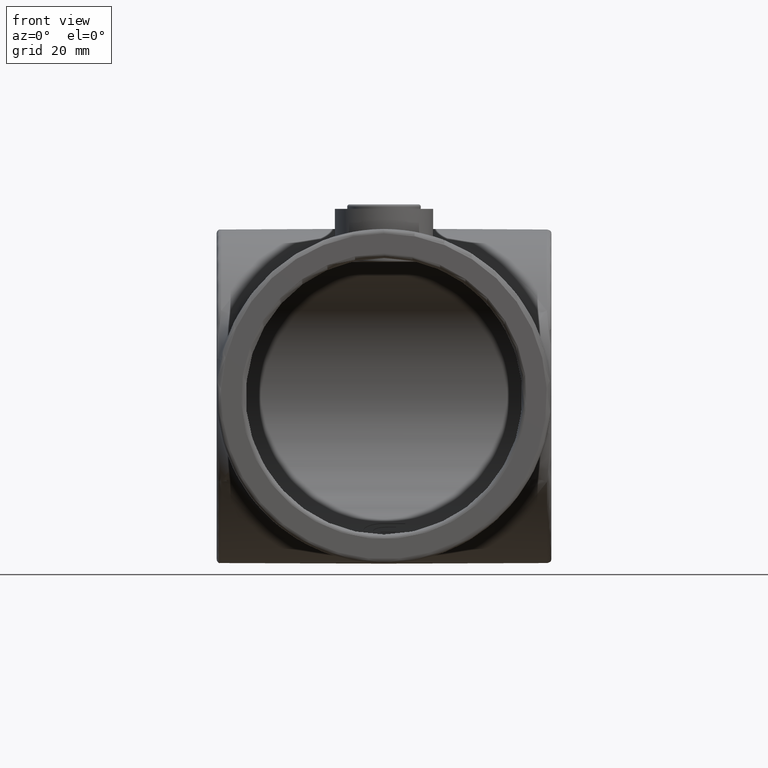
[diagram: clean part render]
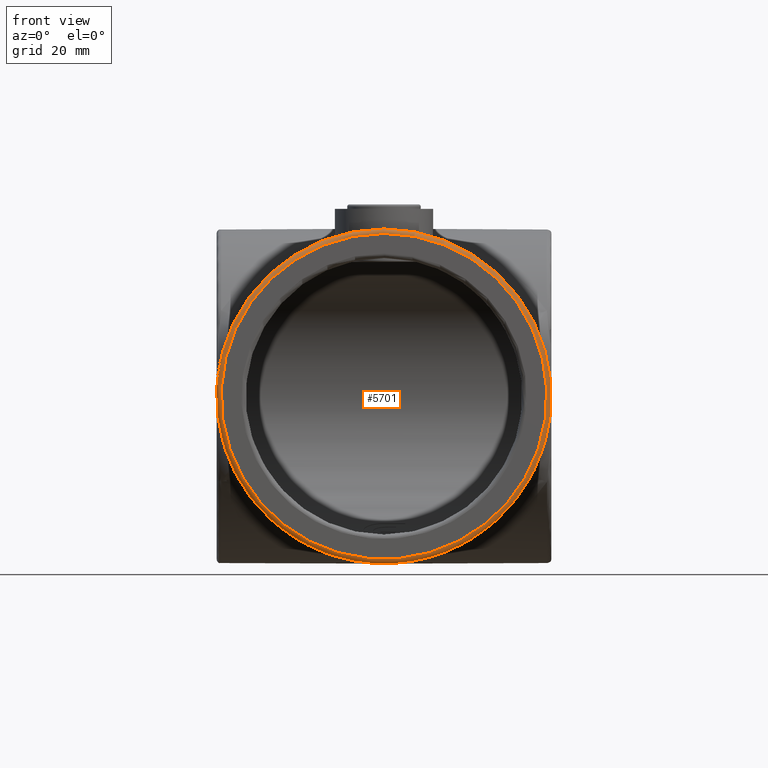
[diagram: same view with one face highlighted and labeled with its STEP entity id]
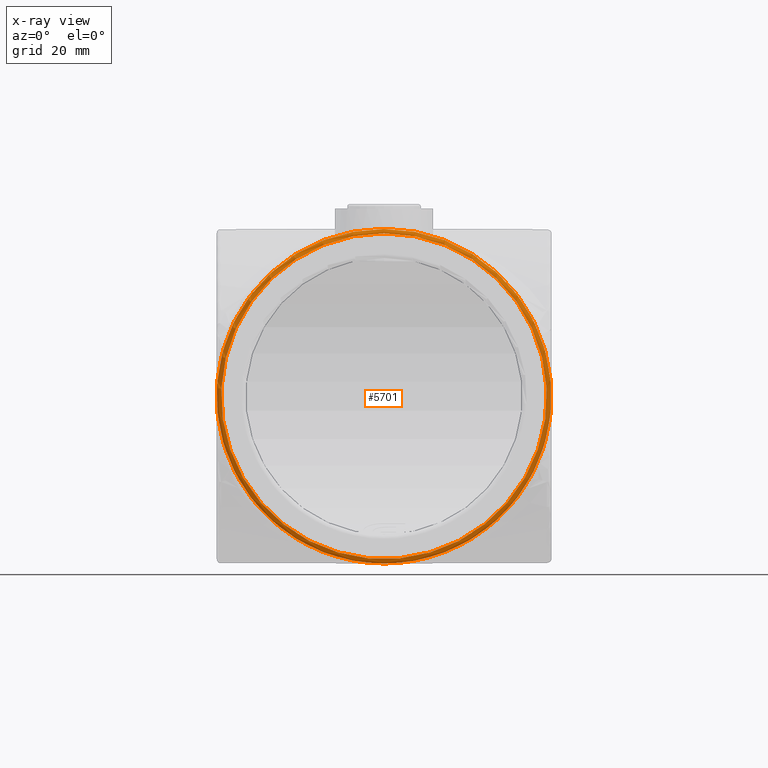
[diagram: x-ray of the same camera — body ghosted, the highlighted face saturated]
A machine part, front view. The second image highlights one B-rep face of the part: STEP entity #5701.
The next image is the same camera in x-ray: the body ghosted, the highlighted face saturated — about 0% of this face is hidden behind the body in this view.
In plain terms, the highlighted toroidal blend (fillet) surface has major radius 36.5 mm and minor (blend) radius 1 mm.
Its self-contained STEP definition (entity closure, byte-faithful):
#29 = EDGE_CURVE ( 'NONE', #2378, #2378, #5650, .T. ) ;
#122 = ORIENTED_EDGE ( 'NONE', *, *, #29, .F. ) ;
#442 = AXIS2_PLACEMENT_3D ( 'NONE', #9736, #8682, #3365 ) ;
#591 = CARTESIAN_POINT ( 'NONE',  ( 0.000000000000000000, 1.000000000000000888, 0.000000000000000000 ) ) ;
#2378 = VERTEX_POINT ( 'NONE', #8778 ) ;
#3365 = DIRECTION ( 'NONE',  ( 0.000000000000000000, 0.000000000000000000, 1.000000000000000000 ) ) ;
#4399 = AXIS2_PLACEMENT_3D ( 'NONE', #591, #4940, #8344 ) ;
#4940 = DIRECTION ( 'NONE',  ( 0.000000000000000000, 1.000000000000000000, 0.000000000000000000 ) ) ;
#5135 = CIRCLE ( 'NONE', #442, 36.50000000000000711 ) ;
#5218 = ORIENTED_EDGE ( 'NONE', *, *, #9496, .F. ) ;
#5650 = CIRCLE ( 'NONE', #6867, 37.50000000000000711 ) ;
#5701 = ADVANCED_FACE ( 'NONE', ( #6882, #11900 ), #8063, .T. ) ;
#6867 = AXIS2_PLACEMENT_3D ( 'NONE', #13029, #9073, #12340 ) ;
#6882 = FACE_OUTER_BOUND ( 'NONE', #7027, .T. ) ;
#7027 = EDGE_LOOP ( 'NONE', ( #5218 ) ) ;
#8063 = TOROIDAL_SURFACE ( 'NONE', #4399, 36.50000000000000711, 1.000000000000000000 ) ;
#8344 = DIRECTION ( 'NONE',  ( 0.000000000000000000, 0.000000000000000000, 1.000000000000000000 ) ) ;
#8682 = DIRECTION ( 'NONE',  ( -0.000000000000000000, -1.000000000000000000, -0.000000000000000000 ) ) ;
#8778 = CARTESIAN_POINT ( 'NONE',  ( 0.000000000000000000, 1.000000000000000888, 37.50000000000000711 ) ) ;
#9073 = DIRECTION ( 'NONE',  ( 0.000000000000000000, 1.000000000000000000, 0.000000000000000000 ) ) ;
#9453 = VERTEX_POINT ( 'NONE', #13915 ) ;
#9496 = EDGE_CURVE ( 'NONE', #9453, #9453, #5135, .T. ) ;
#9736 = CARTESIAN_POINT ( 'NONE',  ( 0.000000000000000000, 0.000000000000000000, 0.000000000000000000 ) ) ;
#10755 = EDGE_LOOP ( 'NONE', ( #122 ) ) ;
#11900 = FACE_OUTER_BOUND ( 'NONE', #10755, .T. ) ;
#12340 = DIRECTION ( 'NONE',  ( 0.000000000000000000, 0.000000000000000000, 1.000000000000000000 ) ) ;
#13029 = CARTESIAN_POINT ( 'NONE',  ( 0.000000000000000000, 1.000000000000000888, 0.000000000000000000 ) ) ;
#13915 = CARTESIAN_POINT ( 'NONE',  ( 0.000000000000000000, 0.000000000000000000, 36.50000000000000711 ) ) ;